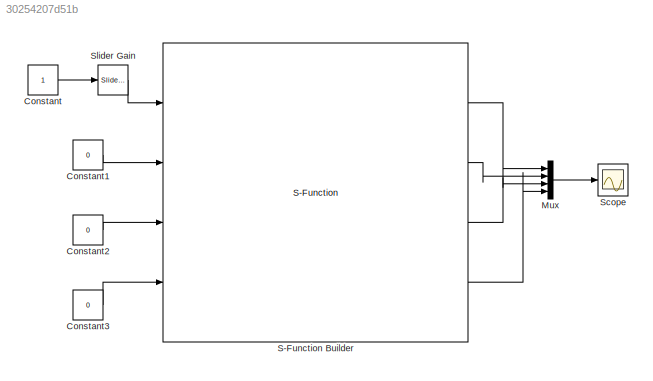
MODEL slx_30254207d51b
KIND model
BLOCK [Constant] Constant
  LockScale = on
  OutDataTypeStr = boolean
  OutMax = 1
  OutMin = 0
BLOCK [Constant] Constant1
  LockScale = on
  OutDataTypeStr = boolean
  OutMax = 1
  OutMin = 0
  Value = 0
BLOCK [Constant] Constant2
  LockScale = on
  OutDataTypeStr = boolean
  OutMax = 1
  OutMin = 0
  Value = 0
BLOCK [Constant] Constant3
  LockScale = on
  OutDataTypeStr = boolean
  OutMax = 1
  OutMin = 0
  Value = 0
BLOCK [Mux] Mux
  DisplayOption = bar
  Ports = [4, 1]
BLOCK [S-Function] S-Function Builder
  CopyFcn = set_param(gcbh,'LinkStatus','none')
  EnableBusSupport = off
  FunctionName = BBB_Output_LightTest
  InitFcn = try, set_param(gcb,'FunctionName','BBB_Output_LightTest'), end
  OpenFcn = sfunctionwizard(gcbh)
  Parameters = boolean(0),boolean(0)
  Ports = [4, 4]
  PreSaveFcn = try, set_param(gcb,'FunctionName','BBB_Output_LightTest'), end
  SFunctionModules = BBB_Output_LightTest_wrapper
BLOCK [Scope] Scope
  DataFormat = StructureWithTime
  Floating = off
  NumInputPorts = 1
  Ports = [1]
  SampleTime = 0
  ShowLegends = off
  TimeRange = 10
BLOCK [Reference] Slider Gain  REF=simulink/Math
Operations/Slider
Gain
  Ports = [1, 1]
  SourceBlock = simulink/Math\nOperations/Slider\nGain
  SourceType = Slider Gain
  gain = 0
  high = 1
  low = 0
LINE Constant1:1 -> S-Function Builder:2
LINE Constant2:1 -> S-Function Builder:3
LINE Constant3:1 -> S-Function Builder:4
LINE Constant:1 -> Slider Gain:1
LINE Mux:1 -> Scope:1
LINE S-Function Builder:1 -> Mux:1
LINE S-Function Builder:2 -> Mux:2
LINE S-Function Builder:3 -> Mux:3
LINE S-Function Builder:4 -> Mux:4
LINE Slider Gain:1 -> S-Function Builder:1
